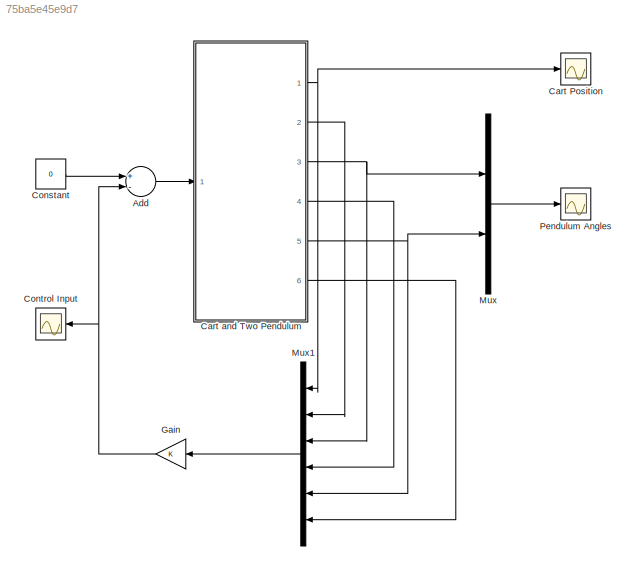
MODEL slx_75ba5e45e9d7
KIND model
CONFIG AbsTol = auto
CONFIG FixedStep = auto
CONFIG MaxStep = auto
CONFIG MinStep = auto
CONFIG RelTol = 1e-3
CONFIG SampleTimeConstraint = Unconstrained
CONFIG Solver = VariableStepAuto
CONFIG SolverMode = Auto
CONFIG SolverName = VariableStepAuto
CONFIG StartTime = 0.0
CONFIG StopTime = 50
BLOCK [Sum] Add
  InputSameDT = off
  Inputs = +-
  OutDataTypeStr = Inherit: Inherit via internal rule
  Ports = [2, 1]
  SaturateOnIntegerOverflow = off
BLOCK [Scope] Cart Position
  Ports = [1]
  ScopeSpecificationString = Simulink.scopes.TimeScopeBlockCfg('CurrentConfiguration', extmgr.ConfigurationSet(extmgr.Configuration('Core','General UI',true,'FigureColor',[1 1 1]),extmgr.Configuration('Core','Source UI',true),extmgr.Configuration('Sources','WiredSimulink',true),extmgr.Configuration('Visuals','Time Domain',true,'SerializedDisplays',{struct('MinYLimReal','-2.4197','MaxYLimReal','0.93606','YLabelReal','','MinYLi...<+1521ch>
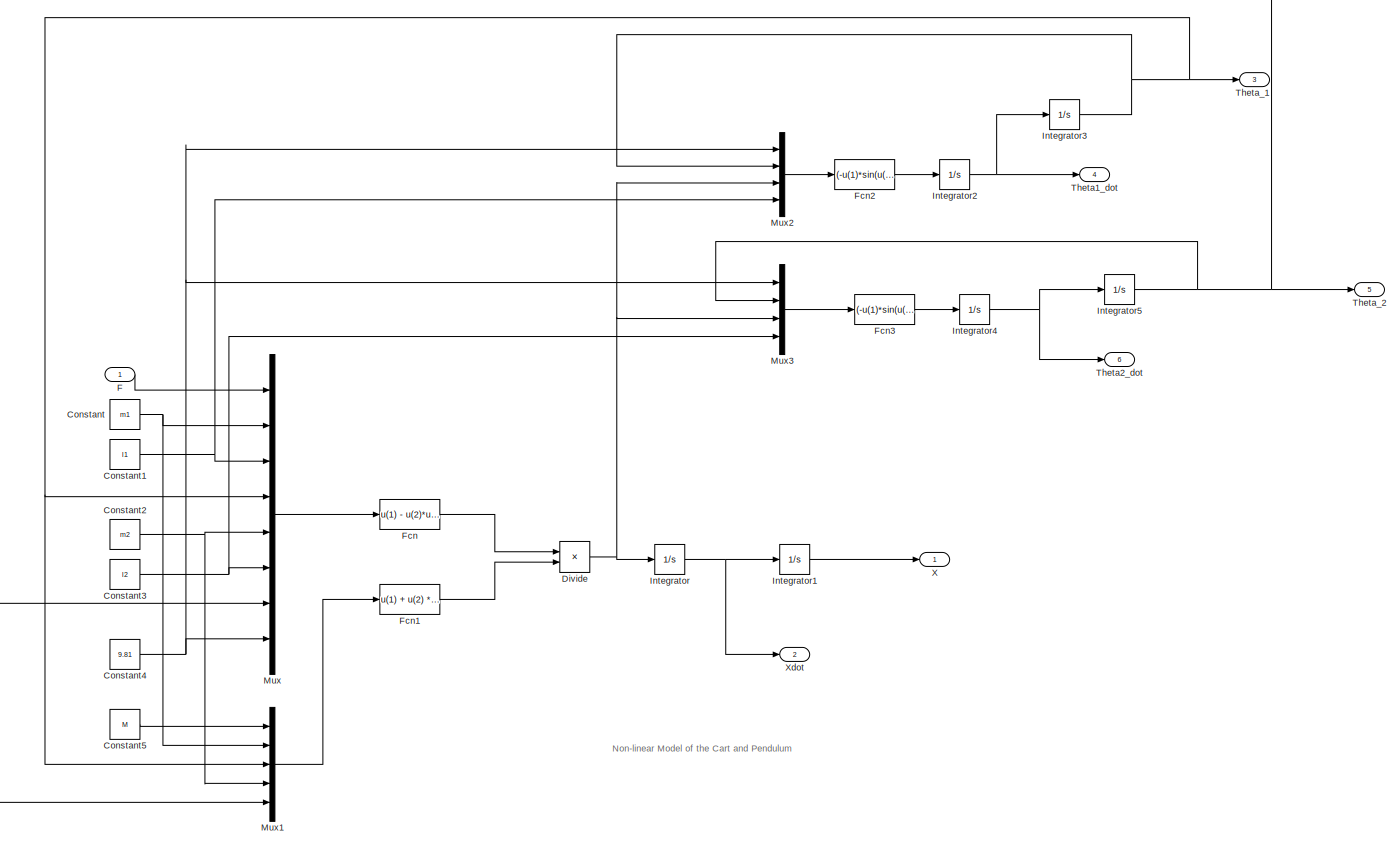
[diagram: Cart and Two Pendulum  - part 1/1, most of the canvas]
BLOCK [SubSystem] Cart and Two Pendulum 
  Ports = [1, 6]
  RequestExecContextInheritance = off
  Variant = off
BLOCK [Constant] Cart and Two Pendulum /Constant
  Value = m1
BLOCK [Constant] Cart and Two Pendulum /Constant1
  Value = l1
BLOCK [Constant] Cart and Two Pendulum /Constant2
  Value = m2
BLOCK [Constant] Cart and Two Pendulum /Constant3
  Value = l2
BLOCK [Constant] Cart and Two Pendulum /Constant4
  Value = 9.81
BLOCK [Constant] Cart and Two Pendulum /Constant5
  Value = M
BLOCK [Product] Cart and Two Pendulum /Divide
  InputSameDT = off
  Inputs = */
  OutDataTypeStr = Inherit: Inherit via internal rule
  Ports = [2, 1]
  RndMeth = Floor
  SaturateOnIntegerOverflow = off
BLOCK [Inport] Cart and Two Pendulum /F
  IconDisplay = Port number
BLOCK [Fcn] Cart and Two Pendulum /Fcn
  Expr = u(1) - u(2)*u(3)*(u(4)^2)*sin(u(4)) - u(5) * u(6) * (u(7)^2)*sin(u(7))-u(2)*u(8)*sin(u(4))*cos(u(4)) - u(5) * u(8) * sin(u(7)) * cos(u(7))
BLOCK [Fcn] Cart and Two Pendulum /Fcn1
  Expr = u(1) + u(2) * (sin(u(3)))^2 + u(4) * (sin(u(5)))^2
BLOCK [Fcn] Cart and Two Pendulum /Fcn2
  Expr = (-u(1)*sin(u(2)) + cos(u(2)) * u(3)) / u(4)
BLOCK [Fcn] Cart and Two Pendulum /Fcn3
  Expr = (-u(1)*sin(u(2)) + cos(u(2)) * u(3)) / u(4)
BLOCK [Integrator] Cart and Two Pendulum /Integrator
  Ports = [1, 1]
BLOCK [Integrator] Cart and Two Pendulum /Integrator1
  Ports = [1, 1]
BLOCK [Integrator] Cart and Two Pendulum /Integrator2
  Ports = [1, 1]
BLOCK [Integrator] Cart and Two Pendulum /Integrator3
  InitialCondition = X0(3)
  Ports = [1, 1]
BLOCK [Integrator] Cart and Two Pendulum /Integrator4
  Ports = [1, 1]
BLOCK [Integrator] Cart and Two Pendulum /Integrator5
  InitialCondition = X0(5)
  Ports = [1, 1]
BLOCK [Mux] Cart and Two Pendulum /Mux
  DisplayOption = bar
  Inputs = 8
  Ports = [8, 1]
BLOCK [Mux] Cart and Two Pendulum /Mux1
  DisplayOption = bar
  Inputs = 5
  Ports = [5, 1]
BLOCK [Mux] Cart and Two Pendulum /Mux2
  DisplayOption = bar
  Ports = [4, 1]
BLOCK [Mux] Cart and Two Pendulum /Mux3
  DisplayOption = bar
  Ports = [4, 1]
BLOCK [Outport] Cart and Two Pendulum /Theta1_dot
  IconDisplay = Port number
  Port = 4
BLOCK [Outport] Cart and Two Pendulum /Theta2_dot
  IconDisplay = Port number
  Port = 6
BLOCK [Outport] Cart and Two Pendulum /Theta_1
  IconDisplay = Port number
  Port = 3
BLOCK [Outport] Cart and Two Pendulum /Theta_2
  IconDisplay = Port number
  Port = 5
BLOCK [Outport] Cart and Two Pendulum /X
  IconDisplay = Port number
BLOCK [Outport] Cart and Two Pendulum /Xdot
  IconDisplay = Port number
  Port = 2
BLOCK [Constant] Constant
  Value = 0
BLOCK [Scope] Control Input
  Ports = [1]
  ScopeSpecificationString = Simulink.scopes.TimeScopeBlockCfg('CurrentConfiguration', extmgr.ConfigurationSet(extmgr.Configuration('Core','General UI',true,'FigureColor',[1 1 1]),extmgr.Configuration('Core','Source UI',true),extmgr.Configuration('Sources','WiredSimulink',true,'DataLoggingVariableName','ScopeData1'),extmgr.Configuration('Visuals','Time Domain',true,'SerializedDisplays',{struct('MinYLimReal','-423.61495','MaxY...<+1604ch>
BLOCK [Gain] Gain
  Gain = K
  Multiplication = Matrix(K*u)
  OutDataTypeStr = Inherit: Inherit via internal rule
  ParamDataTypeStr = Inherit: Inherit via internal rule
  SaturateOnIntegerOverflow = off
BLOCK [Mux] Mux
  DisplayOption = bar
  Inputs = 2
  Ports = [2, 1]
BLOCK [Mux] Mux1
  DisplayOption = bar
  Inputs = 6
  Ports = [6, 1]
BLOCK [Scope] Pendulum Angles
  Ports = [1]
  ScopeSpecificationString = Simulink.scopes.TimeScopeBlockCfg('CurrentConfiguration', extmgr.ConfigurationSet(extmgr.Configuration('Core','General UI',true,'FigureColor',[1 1 1]),extmgr.Configuration('Core','Source UI',true),extmgr.Configuration('Sources','WiredSimulink',true,'DataLoggingVariableName','ScopeData1'),extmgr.Configuration('Visuals','Time Domain',true,'SerializedDisplays',{struct('MinYLimReal','-0.123','MaxYLimR...<+1637ch>
ANNOTATION Cart and Two Pendulum : Non-linear Model of the Cart and Pendulum
LINE Add:1 -> Cart and Two Pendulum :1
NET Cart and Two Pendulum /Constant1:1 -> Cart and Two Pendulum /Mux2:4, Cart and Two Pendulum /Mux:3
NET Cart and Two Pendulum /Constant2:1 -> Cart and Two Pendulum /Mux1:4, Cart and Two Pendulum /Mux:5
NET Cart and Two Pendulum /Constant3:1 -> Cart and Two Pendulum /Mux3:4, Cart and Two Pendulum /Mux:6
NET Cart and Two Pendulum /Constant4:1 -> Cart and Two Pendulum /Mux2:1, Cart and Two Pendulum /Mux3:1, Cart and Two Pendulum /Mux:8
LINE Cart and Two Pendulum /Constant5:1 -> Cart and Two Pendulum /Mux1:1
NET Cart and Two Pendulum /Constant:1 -> Cart and Two Pendulum /Mux1:2, Cart and Two Pendulum /Mux:2
NET Cart and Two Pendulum /Divide:1 -> Cart and Two Pendulum /Integrator:1, Cart and Two Pendulum /Mux2:3, Cart and Two Pendulum /Mux3:3
LINE Cart and Two Pendulum /F:1 -> Cart and Two Pendulum /Mux:1
LINE Cart and Two Pendulum /Fcn1:1 -> Cart and Two Pendulum /Divide:2
LINE Cart and Two Pendulum /Fcn2:1 -> Cart and Two Pendulum /Integrator2:1
LINE Cart and Two Pendulum /Fcn3:1 -> Cart and Two Pendulum /Integrator4:1
LINE Cart and Two Pendulum /Fcn:1 -> Cart and Two Pendulum /Divide:1
LINE Cart and Two Pendulum /Integrator1:1 -> Cart and Two Pendulum /X:1
NET Cart and Two Pendulum /Integrator2:1 -> Cart and Two Pendulum /Integrator3:1, Cart and Two Pendulum /Theta1_dot:1
NET Cart and Two Pendulum /Integrator3:1 -> Cart and Two Pendulum /Mux1:3, Cart and Two Pendulum /Mux2:2, Cart and Two Pendulum /Mux:4, Cart and Two Pendulum /Theta_1:1
NET Cart and Two Pendulum /Integrator4:1 -> Cart and Two Pendulum /Integrator5:1, Cart and Two Pendulum /Theta2_dot:1
NET Cart and Two Pendulum /Integrator5:1 -> Cart and Two Pendulum /Mux1:5, Cart and Two Pendulum /Mux3:2, Cart and Two Pendulum /Mux:7, Cart and Two Pendulum /Theta_2:1
NET Cart and Two Pendulum /Integrator:1 -> Cart and Two Pendulum /Integrator1:1, Cart and Two Pendulum /Xdot:1
LINE Cart and Two Pendulum /Mux1:1 -> Cart and Two Pendulum /Fcn1:1
LINE Cart and Two Pendulum /Mux2:1 -> Cart and Two Pendulum /Fcn2:1
LINE Cart and Two Pendulum /Mux3:1 -> Cart and Two Pendulum /Fcn3:1
LINE Cart and Two Pendulum /Mux:1 -> Cart and Two Pendulum /Fcn:1
NET Cart and Two Pendulum :1 -> Cart Position:1, Mux1:1
LINE Cart and Two Pendulum :2 -> Mux1:2
NET Cart and Two Pendulum :3 -> Mux1:3, Mux:1
LINE Cart and Two Pendulum :4 -> Mux1:4
NET Cart and Two Pendulum :5 -> Mux1:5, Mux:2
LINE Cart and Two Pendulum :6 -> Mux1:6
LINE Constant:1 -> Add:1
NET Gain:1 -> Add:2, Control Input:1
LINE Mux1:1 -> Gain:1
LINE Mux:1 -> Pendulum Angles:1
note: NET lines group one-source signal fan-out (src -> all destinations, sorted); 1:1 wires keep LINE
